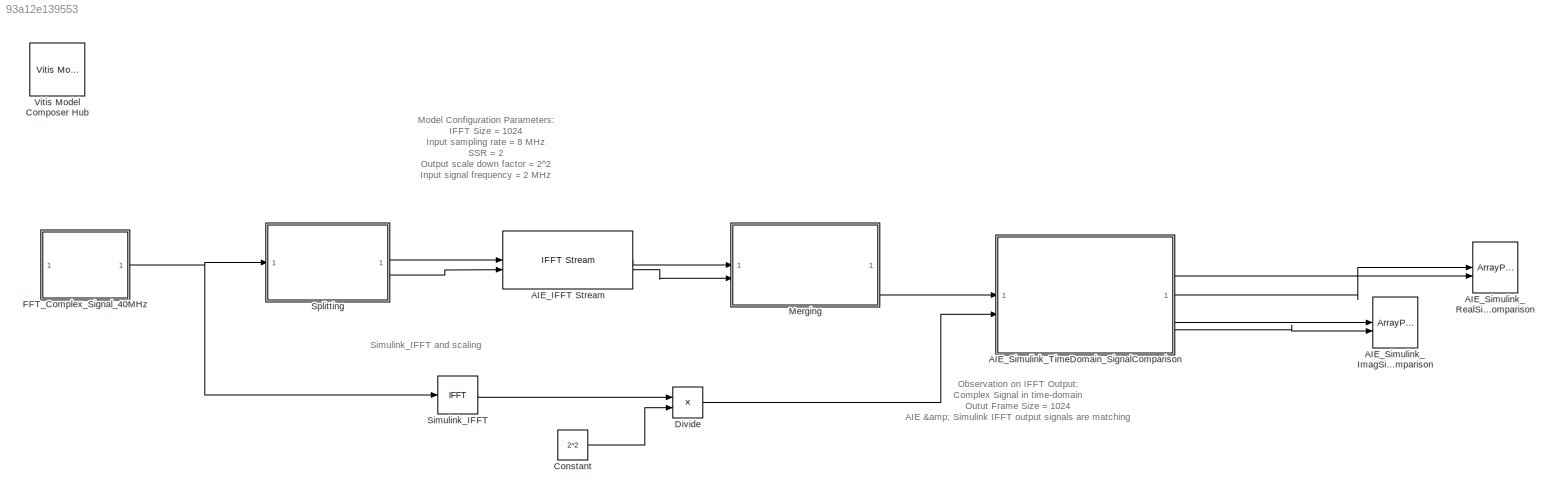
MODEL slx_93a12e139553
KIND model
CONFIG AbsTol = auto
CONFIG EnableMultiTasking = off
CONFIG FixedStep = auto
CONFIG MaxStep = auto
CONFIG MinStep = auto
CONFIG RelTol = 1e-3
CONFIG SampleTimeConstraint = Unconstrained
CONFIG SolverName = VariableStepAuto
CONFIG StartTime = 0.0
CONFIG StopTime = 0.1
BLOCK [Reference] AIE_IFFT Stream  REF=aieDSP/IFFT Stream
  SourceBlock = aieDSP/IFFT Stream
  SourceType = IFFT Stream
BLOCK [ArrayPlot] AIE_Simulink_ImagSignal_Comparison 
  GraphicalSettings = {"Style":{"BackgroundColor":[0.15686274509803921,0.15686274509803921,0.15686274509803921],"AxesColor":[0,0,0],"LabelsColor":[0.68627450980392157,0.68627450980392157,0.68627450980392157],"LineStyle":["-","-"],"LineColor":[[1,1,0.066666666666666666],[0.074509803921568626,0.62352941176470589,1]],"LineWidth":[1.5,1.5],"Marker":["none","none"],"FontSize":"small"},"Cursors":{"Enabled":false,"XLocation":...<+392ch>
  NumInputPorts = 2
  PlotType = Line
  ShowLegend = on
  WasSavedAsWebScope = on
  WindowPosition = [2.000000,37.000000,1280.000000,655.000000,]
  YLimits = [-1280,1280]
BLOCK [ArrayPlot] AIE_Simulink_RealSignal_Comparison
  GraphicalSettings = {"Style":{"BackgroundColor":[0.15686274509803921,0.15686274509803921,0.15686274509803921],"AxesColor":[0,0,0],"LabelsColor":[0.68627450980392157,0.68627450980392157,0.68627450980392157],"LineStyle":["-","-"],"LineColor":[[1,1,0.066666666666666666],[0.074509803921568626,0.62352941176470589,1]],"LineWidth":[1.5,1.5],"Marker":["none","none"],"FontSize":"small"},"Cursors":{"Enabled":false,"XLocation":...<+392ch>
  NumInputPorts = 2
  PlotType = Line
  ShowLegend = on
  WasSavedAsWebScope = on
  WindowPosition = [2.000000,37.000000,1280.000000,655.000000,]
  YLimits = [-1281.125,1280.125]
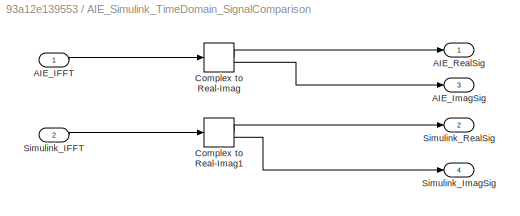
BLOCK [SubSystem] AIE_Simulink_TimeDomain_SignalComparison
BLOCK [Inport] AIE_Simulink_TimeDomain_SignalComparison/AIE_IFFT
BLOCK [Outport] AIE_Simulink_TimeDomain_SignalComparison/AIE_ImagSig
  Port = 3
BLOCK [Outport] AIE_Simulink_TimeDomain_SignalComparison/AIE_RealSig
BLOCK [ComplexToRealImag] AIE_Simulink_TimeDomain_SignalComparison/Complex to Real-Imag
BLOCK [ComplexToRealImag] AIE_Simulink_TimeDomain_SignalComparison/Complex to Real-Imag1
BLOCK [Inport] AIE_Simulink_TimeDomain_SignalComparison/Simulink_IFFT
  Port = 2
BLOCK [Outport] AIE_Simulink_TimeDomain_SignalComparison/Simulink_ImagSig
  Port = 4
BLOCK [Outport] AIE_Simulink_TimeDomain_SignalComparison/Simulink_RealSig
  Port = 2
BLOCK [Constant] Constant
  OutDataTypeStr = int16
  Value = 2^2
BLOCK [Product] Divide
  Inputs = */
  OutDataTypeStr = int16
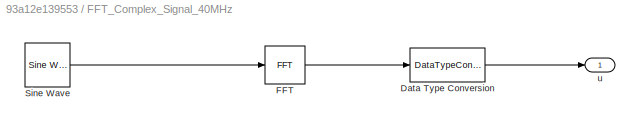
BLOCK [SubSystem] FFT_Complex_Signal_40MHz
BLOCK [DataTypeConversion] FFT_Complex_Signal_40MHz/Data Type Conversion
  ConvertRealWorld = Stored Integer (SI)
  OutDataTypeStr = int16
  RndMeth = Floor
  SaturateOnIntegerOverflow = off
BLOCK [Reference] FFT_Complex_Signal_40MHz/FFT  REF=dspxfrm3/FFT
  SourceBlock = dspxfrm3/FFT
  SourceType = FFT
BLOCK [Reference] FFT_Complex_Signal_40MHz/Sine Wave  REF=dspsrcs4/Sine Wave
  SourceBlock = dspsrcs4/Sine Wave
  SourceType = Sine Wave
BLOCK [Outport] FFT_Complex_Signal_40MHz/u
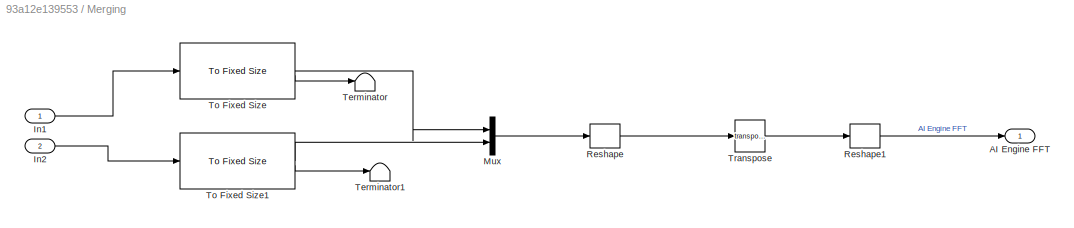
BLOCK [SubSystem] Merging
BLOCK [Outport] Merging/AI Engine FFT
BLOCK [Inport] Merging/In1
BLOCK [Inport] Merging/In2
  Port = 2
BLOCK [Mux] Merging/Mux
  DisplayOption = bar
  Inputs = 2
BLOCK [Reshape] Merging/Reshape
  OutputDimensionality = Customize
  OutputDimensions = [512, 2]
BLOCK [Reshape] Merging/Reshape1
  OutputDimensions = [1, 10]
BLOCK [Terminator] Merging/Terminator
BLOCK [Terminator] Merging/Terminator1
BLOCK [Reference] Merging/To Fixed Size  REF=aieUtilities/To Fixed Size
  SourceBlock = aieUtilities/To Fixed Size
  SourceType = To Fixed Size
BLOCK [Reference] Merging/To Fixed Size1  REF=aieUtilities/To Fixed Size
  SourceBlock = aieUtilities/To Fixed Size
  SourceType = To Fixed Size
BLOCK [Math] Merging/Transpose
  Operator = transpose
BLOCK [Reference] Simulink_IFFT  REF=dspxfrm3/IFFT
  SourceBlock = dspxfrm3/IFFT
  SourceType = IFFT
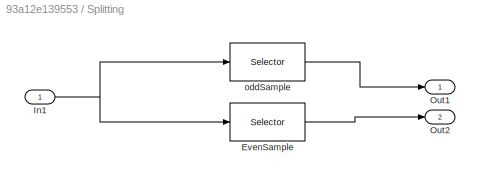
BLOCK [SubSystem] Splitting
BLOCK [Selector] Splitting/EvenSample
  IndexOptions = Index vector (dialog)
  Indices = 2:2:1024
  InputPortWidth = 1024
  OutputSizes = 1
BLOCK [Inport] Splitting/In1
BLOCK [Outport] Splitting/Out1
BLOCK [Outport] Splitting/Out2
  Port = 2
BLOCK [Selector] Splitting/oddSample
  IndexOptions = Index vector (dialog)
  Indices = 1:2:1024
  InputPortWidth = 1024
  OutputSizes = 1
BLOCK [Reference] Vitis Model Composer Hub  REF=vmcUtilities/Vitis Model Composer Hub
  SourceBlock = vmcUtilities/Vitis Model Composer Hub
  SourceType = VMC Hub
  Tag = genX
  UserDataPersistent = on
ANNOTATION (root): Observation on IFFT Output: Complex Signal in time-domain Outut Frame Size = 1024 AIE & Simulink IFFT output signals are matching
ANNOTATION (root): Model Configuration Parameters: IFFT Size = 1024 Input sampling rate = 8 MHz SSR = 2 Output scale down factor = 2^2 Input signal frequency = 2 MHz
ANNOTATION (root): Simulink_IFFT and scaling
LINE AIE_IFFT Stream:1 -> Merging:1
LINE AIE_IFFT Stream:2 -> Merging:2
LINE AIE_Simulink_TimeDomain_SignalComparison/AIE_IFFT:1 -> AIE_Simulink_TimeDomain_SignalComparison/Complex to Real-Imag:1
LINE AIE_Simulink_TimeDomain_SignalComparison/Complex to Real-Imag1:1 -> AIE_Simulink_TimeDomain_SignalComparison/Simulink_RealSig:1
LINE AIE_Simulink_TimeDomain_SignalComparison/Complex to Real-Imag1:2 -> AIE_Simulink_TimeDomain_SignalComparison/Simulink_ImagSig:1
LINE AIE_Simulink_TimeDomain_SignalComparison/Complex to Real-Imag:1 -> AIE_Simulink_TimeDomain_SignalComparison/AIE_RealSig:1
LINE AIE_Simulink_TimeDomain_SignalComparison/Complex to Real-Imag:2 -> AIE_Simulink_TimeDomain_SignalComparison/AIE_ImagSig:1
LINE AIE_Simulink_TimeDomain_SignalComparison/Simulink_IFFT:1 -> AIE_Simulink_TimeDomain_SignalComparison/Complex to Real-Imag1:1
LINE AIE_Simulink_TimeDomain_SignalComparison:1 -> AIE_Simulink_RealSignal_Comparison:1
LINE AIE_Simulink_TimeDomain_SignalComparison:2 -> AIE_Simulink_RealSignal_Comparison:2
LINE AIE_Simulink_TimeDomain_SignalComparison:3 -> AIE_Simulink_ImagSignal_Comparison :1
LINE AIE_Simulink_TimeDomain_SignalComparison:4 -> AIE_Simulink_ImagSignal_Comparison :2
LINE Constant:1 -> Divide:2
LINE Divide:1 -> AIE_Simulink_TimeDomain_SignalComparison:2
LINE FFT_Complex_Signal_40MHz/Data Type Conversion:1 -> FFT_Complex_Signal_40MHz/u:1
LINE FFT_Complex_Signal_40MHz/FFT:1 -> FFT_Complex_Signal_40MHz/Data Type Conversion:1
LINE FFT_Complex_Signal_40MHz/Sine Wave:1 -> FFT_Complex_Signal_40MHz/FFT:1
NET FFT_Complex_Signal_40MHz:1 -> Simulink_IFFT:1, Splitting:1
LINE Merging/In1:1 -> Merging/To Fixed Size:1
LINE Merging/In2:1 -> Merging/To Fixed Size1:1
LINE Merging/Mux:1 -> Merging/Reshape:1
LINE Merging/Reshape1:1 -> Merging/AI Engine FFT:1
LINE Merging/Reshape:1 -> Merging/Transpose:1
LINE Merging/To Fixed Size1:1 -> Merging/Mux:2
LINE Merging/To Fixed Size1:2 -> Merging/Terminator1:1
LINE Merging/To Fixed Size:1 -> Merging/Mux:1
LINE Merging/To Fixed Size:2 -> Merging/Terminator:1
LINE Merging/Transpose:1 -> Merging/Reshape1:1
LINE Merging:1 -> AIE_Simulink_TimeDomain_SignalComparison:1
LINE Simulink_IFFT:1 -> Divide:1
LINE Splitting/EvenSample:1 -> Splitting/Out2:1
NET Splitting/In1:1 -> Splitting/EvenSample:1, Splitting/oddSample:1
LINE Splitting/oddSample:1 -> Splitting/Out1:1
LINE Splitting:1 -> AIE_IFFT Stream:1
LINE Splitting:2 -> AIE_IFFT Stream:2
note: NET lines group one-source signal fan-out (src -> all destinations, sorted); 1:1 wires keep LINE
